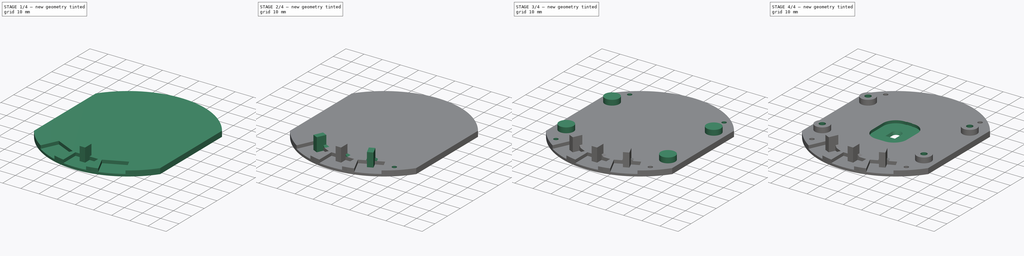
[diagram: build sequence overview — one tinted view per stage of 4, left to right]
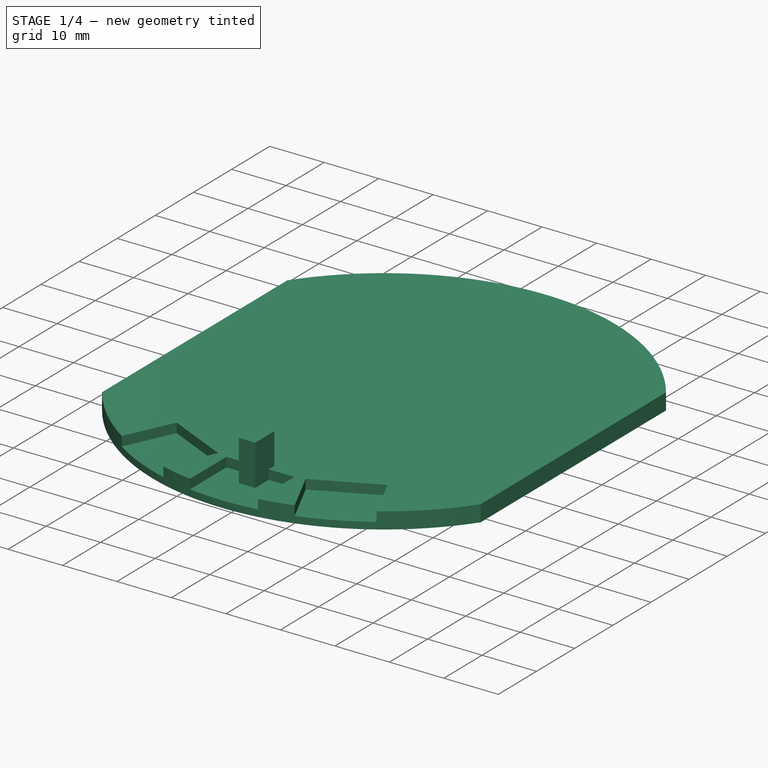
[diagram: stage 1 of 4 — iso view after this stage's code; geometry added in this stage tinted green]
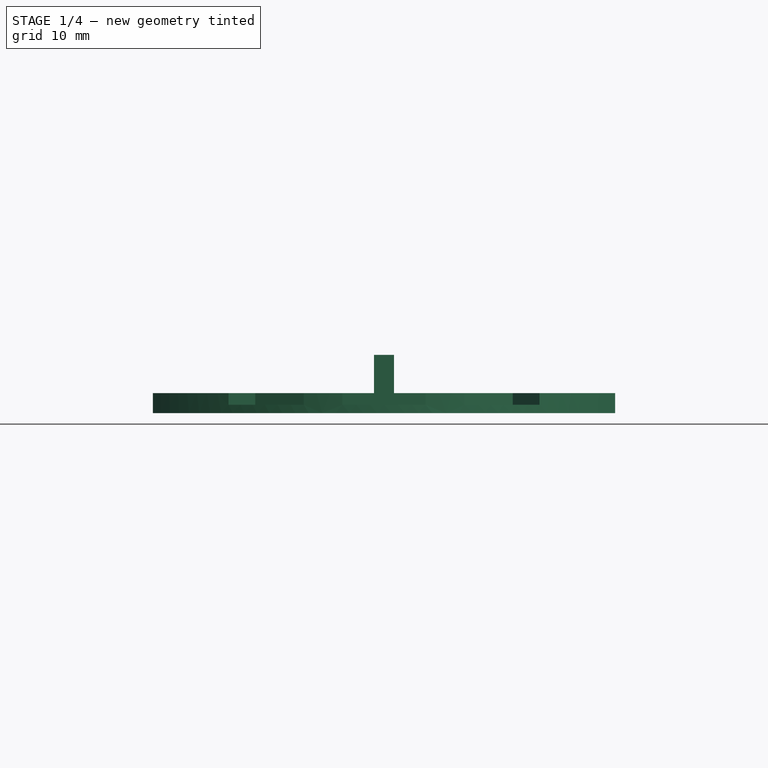
[diagram: stage 1 of 4 — front view after this stage's code; geometry added in this stage tinted green]
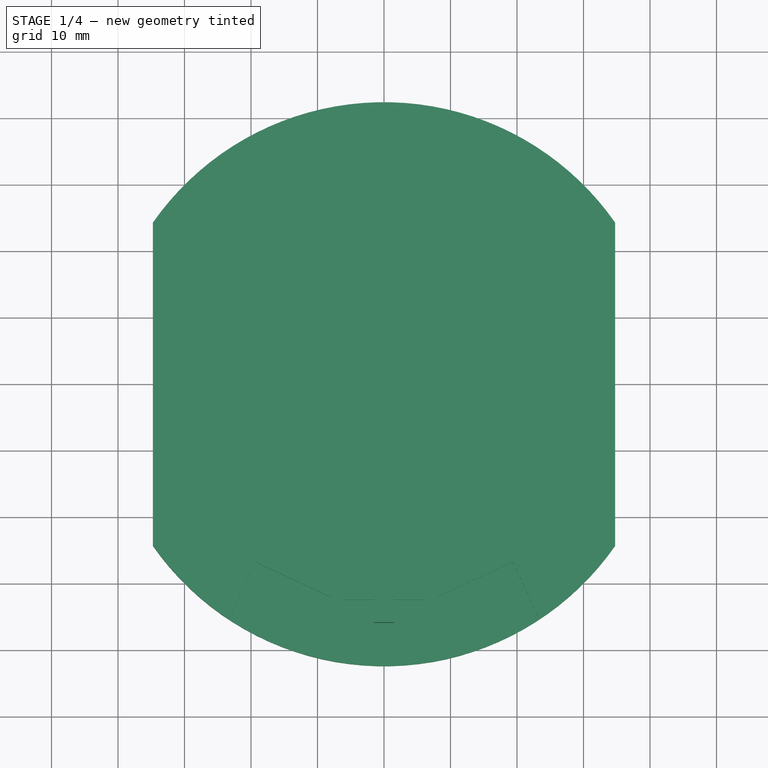
[diagram: stage 1 of 4 — top view after this stage's code; geometry added in this stage tinted green]
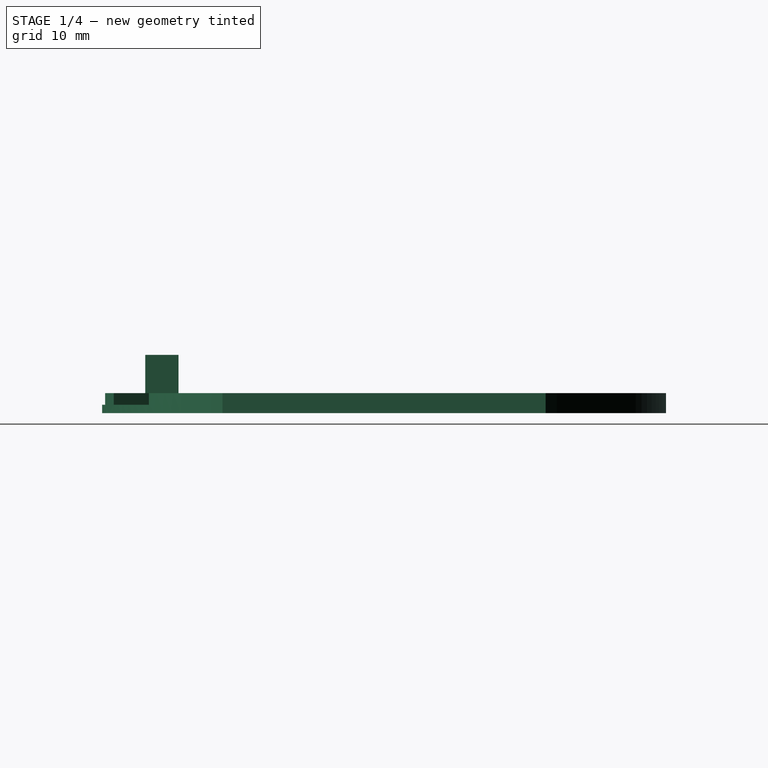
[diagram: stage 1 of 4 — right view after this stage's code; geometry added in this stage tinted green]
FCSTD DOCUMENT  (FreeCAD 0.20R29177 (Git))
Label: depraz_base_DEEPER_BUTTONS
License: All rights reserved
LicenseURL: http://en.wikipedia.org/wiki/All_rights_reserved
objects: Sketcher::SketchObject×7, PartDesign::Mirrored×6, PartDesign::MultiTransform×5, PartDesign::PolarPattern×4, PartDesign::Pad×2, PartDesign::Pocket×2, PartDesign::SubtractiveBox×1, PartDesign::AdditiveBox×1, PartDesign::Chamfer×1, PartDesign::Hole×1, PartDesign::SubtractiveLoft×1, PartDesign::Body×1
note: 41 computed .brp shape members not serialized (recipe doc carries the construction recipe); baked Part::Feature solids carry a one-line shape summary decoded from their .brp

FEATURE [Sketcher::SketchObject] Sketch001
  FullyConstrained = false
  MapMode = 5
  Support = -> [XY_Plane]
  sketch-geometry (4):
    g0: ArcOfCircle CenterX=0 CenterY=0 CenterZ=0 NormalX=0 NormalY=0 NormalZ=1 AngleXU=0 Radius=42.4 StartAngle=3.75172 EndAngle=5.67306
    g1: LineSegment StartX=-34.75 StartY=24.294 StartZ=0 EndX=-34.75 EndY=-24.294 EndZ=0
    g2: LineSegment StartX=34.75 StartY=24.294 StartZ=0 EndX=34.75 EndY=-24.294 EndZ=0
    g3: ArcOfCircle CenterX=0 CenterY=0 CenterZ=0 NormalX=0 NormalY=0 NormalZ=1 AngleXU=0 Radius=42.4 StartAngle=0.610127 EndAngle=2.53147
  constraints (10):
    c: Coincident(g0,g-1)
    c: Radius(g0) = 42.4
    c: Vertical(g1)
    c: Vertical(g2)
    c: Equal(g0,g3)
    c: Coincident(g0,g3)
    c: Coincident(g2,g3)
    c: Coincident(g2,g0)
    c: Coincident(g1,g0)
    c: Coincident(g1,g3)
FEATURE [PartDesign::Pad] Pad
  Direction = (1,1,1)
  Length = 3
  Length2 = 100
  Profile = -> Sketch001
  Type = 0
FEATURE [PartDesign::SubtractiveBox] Box
  AttacherType = Attacher::AttachEngine3D
  AttachmentOffset = pos=(-6.25,-42.4,-1.75) rot=(0,0,1;0rad)
  BaseFeature = -> Pad
  Height = 1.75
  Length = 12.5
  MapMode = 5
  Placement = pos=(-6.25,-42.4,1.25) rot=(0,0,1;0rad)
  Support = -> [Pad]
  Width = 10
FEATURE [PartDesign::PolarPattern] PolarPattern
  Angle = 25
  Axis = -> Z_Axis
  Occurrences = 2
  Placement = pos=(-6.25,-42.4,1.25) rot=(0,0,1;0rad)
FEATURE [PartDesign::PolarPattern] PolarPattern001
  Angle = 25
  Axis = -> Z_Axis
  Occurrences = 2
  Placement = pos=(-6.25,-42.4,1.25) rot=(0,0,1;0rad)
  Reversed = true
FEATURE [PartDesign::MultiTransform] MultiTransform
  BaseFeature = -> Box
  Originals = -> [Box]
  Placement = pos=(-6.25,-42.4,1.25) rot=(0,0,1;0rad)
  Transformations = -> [PolarPattern,PolarPattern001]
FEATURE [PartDesign::AdditiveBox] Box001
  AttacherType = Attacher::AttachEngine3D
  AttachmentOffset = pos=(4.75,6.5,0) rot=(0,0,1;0rad)
  BaseFeature = -> MultiTransform
  Height = 7.5
  Length = 3
  MapMode = 5
  Placement = pos=(-1.5,-35.9,1.25) rot=(0,0,1;0rad)
  Support = -> [MultiTransform]
  Width = 5
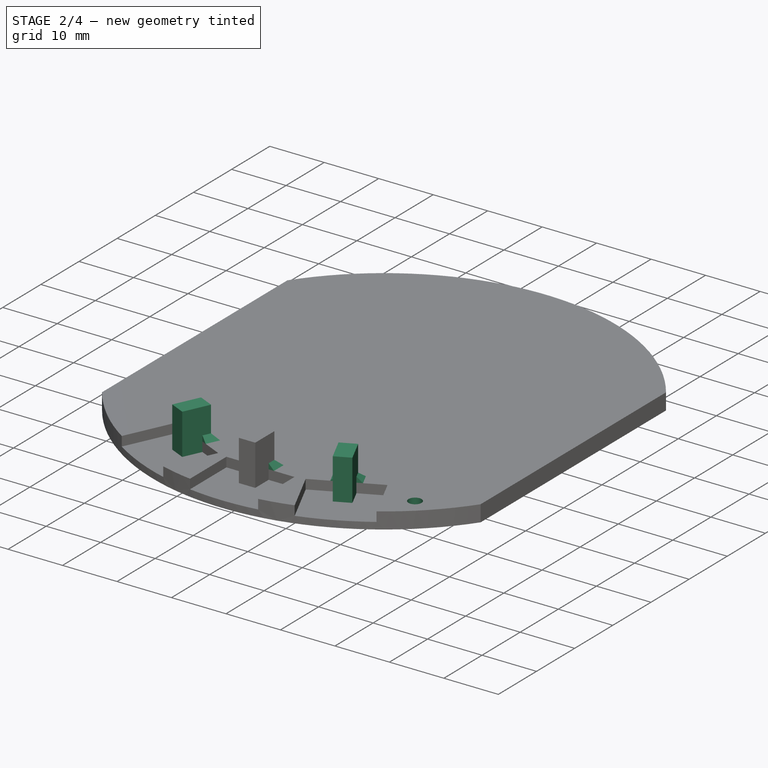
[diagram: stage 2 of 4 — iso view after this stage's code; geometry added in this stage tinted green]
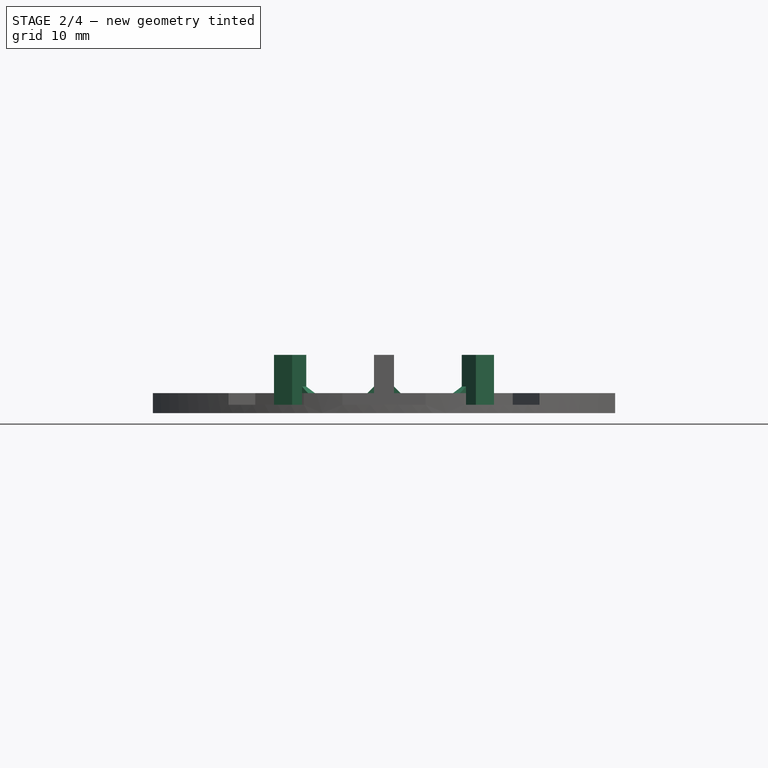
[diagram: stage 2 of 4 — front view after this stage's code; geometry added in this stage tinted green]
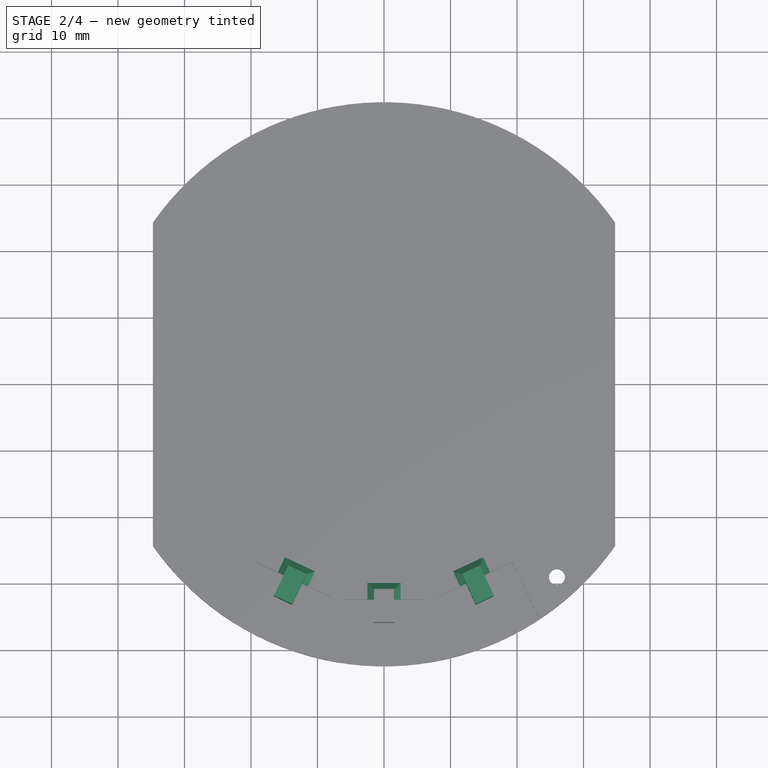
[diagram: stage 2 of 4 — top view after this stage's code; geometry added in this stage tinted green]
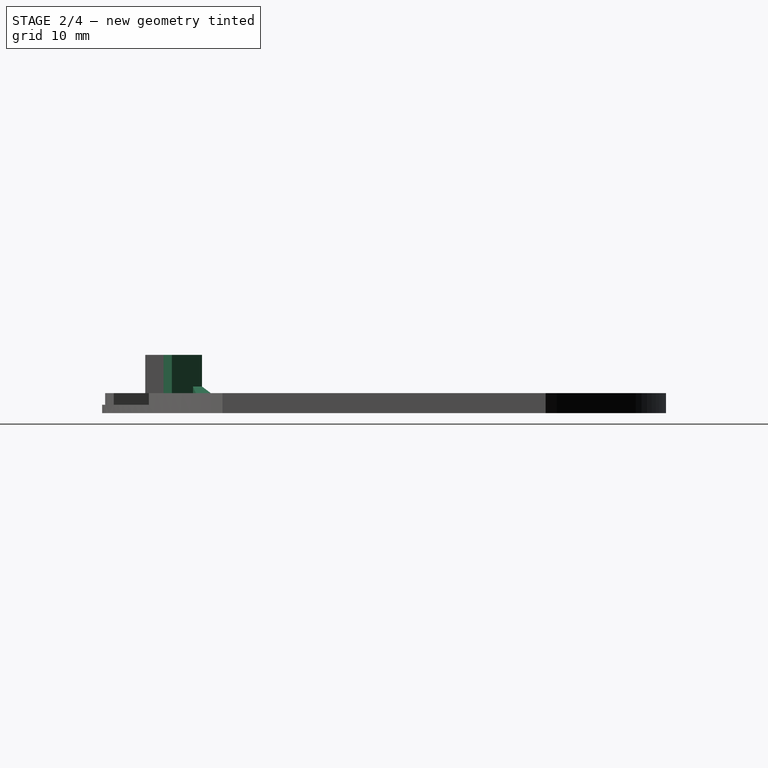
[diagram: stage 2 of 4 — right view after this stage's code; geometry added in this stage tinted green]
FEATURE [PartDesign::Chamfer] Chamfer
  Angle = 45
  Base = -> Box001 [Edge30,Edge31,Edge32]
  BaseFeature = -> Box001
  ChamferType = 0
  FlipDirection = false
  Placement = pos=(-1.5,-35.9,1.25) rot=(0,0,1;0rad)
  Size = 1
  Size2 = 1
  SupportTransform = false
  UseAllEdges = false
FEATURE [PartDesign::PolarPattern] PolarPattern002
  Angle = 25
  Axis = -> Z_Axis
  Occurrences = 2
  Placement = pos=(-1.5,-35.9,1.25) rot=(0,0,1;0rad)
FEATURE [PartDesign::PolarPattern] PolarPattern003
  Angle = 25
  Axis = -> Z_Axis
  Occurrences = 2
  Placement = pos=(-1.5,-35.9,1.25) rot=(0,0,1;0rad)
  Reversed = true
FEATURE [PartDesign::MultiTransform] MultiTransform001
  BaseFeature = -> Chamfer
  Originals = -> [Box001,Chamfer]
  Placement = pos=(-1.5,-35.9,1.25) rot=(0,0,1;0rad)
  Transformations = -> [PolarPattern002,PolarPattern003]
FEATURE [Sketcher::SketchObject] Sketch
  FullyConstrained = true
  MapMode = 5
  Support = -> [XY_Plane]
  sketch-geometry (1):
    g0: Circle CenterX=26 CenterY=-29 CenterZ=0 NormalX=0 NormalY=0 NormalZ=1 AngleXU=0 Radius=2
  constraints (3):
    c: Radius(g0) = 2
    c: DistanceX(g-1,g0) = 26
    c: DistanceY(g0,g-1) = 29
FEATURE [PartDesign::Hole] Hole
  BaseFeature = -> MultiTransform001
  CustomThreadClearance = 0
  Depth = 4
  DepthType = 1
  Diameter = 2.4
  DrillForDepth = false
  DrillPoint = 1
  DrillPointAngle = 118
  HoleCutCountersinkAngle = 90
  HoleCutCustomValues = false
  HoleCutDepth = 1.2
  HoleCutDiameter = 4
  HoleCutType = 2
  ModelThread = false
  Placement = pos=(-1.5,-35.9,1.25) rot=(0,0,1;0rad)
  Profile = -> Sketch
  Reversed = true
  Tapered = false
  TaperedAngle = 90
  ThreadClass = 0
  ThreadDepth = 4
  ThreadDepthType = 0
  ThreadDirection = 0
  ThreadFit = 0
  ThreadSize = 6
  ThreadType = 1
  Threaded = false
  UseCustomThreadClearance = false
  expr: HoleCutDiameter = 4
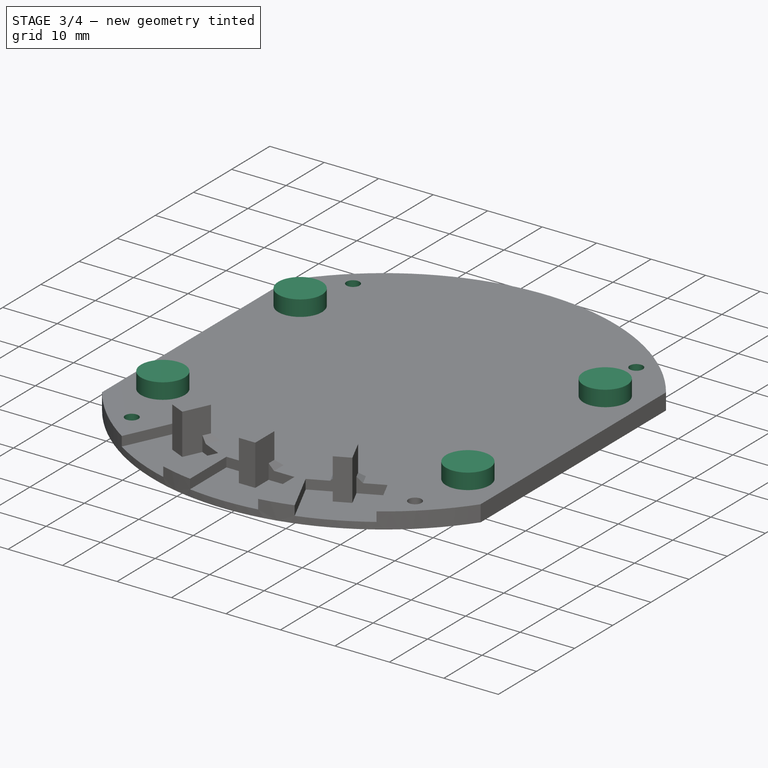
[diagram: stage 3 of 4 — iso view after this stage's code; geometry added in this stage tinted green]
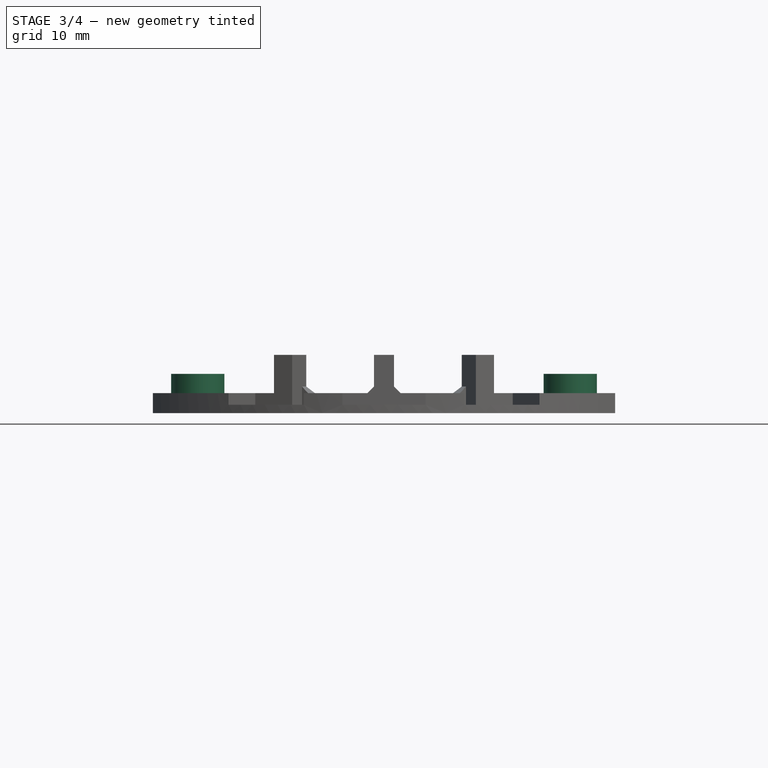
[diagram: stage 3 of 4 — front view after this stage's code; geometry added in this stage tinted green]
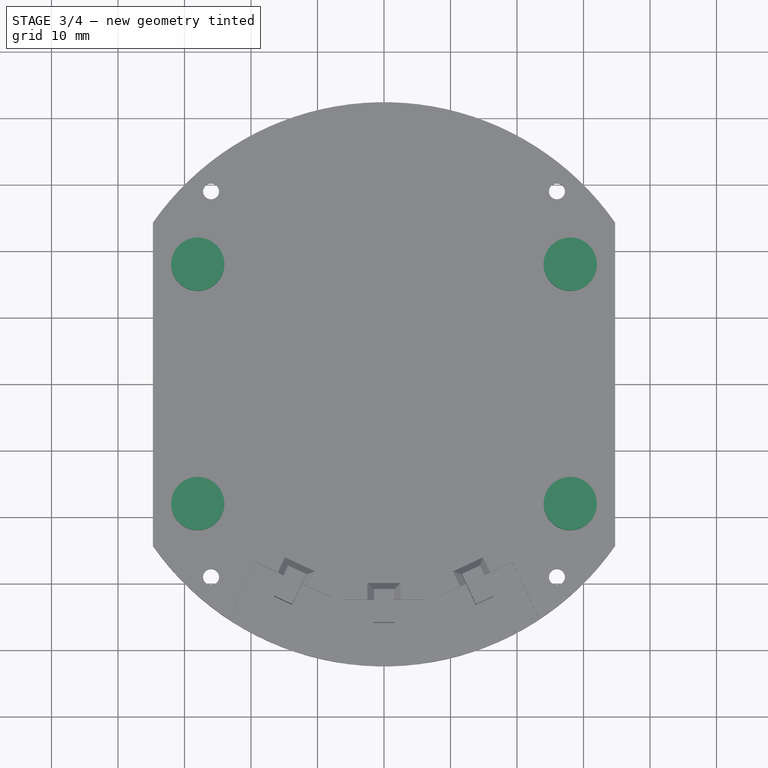
[diagram: stage 3 of 4 — top view after this stage's code; geometry added in this stage tinted green]
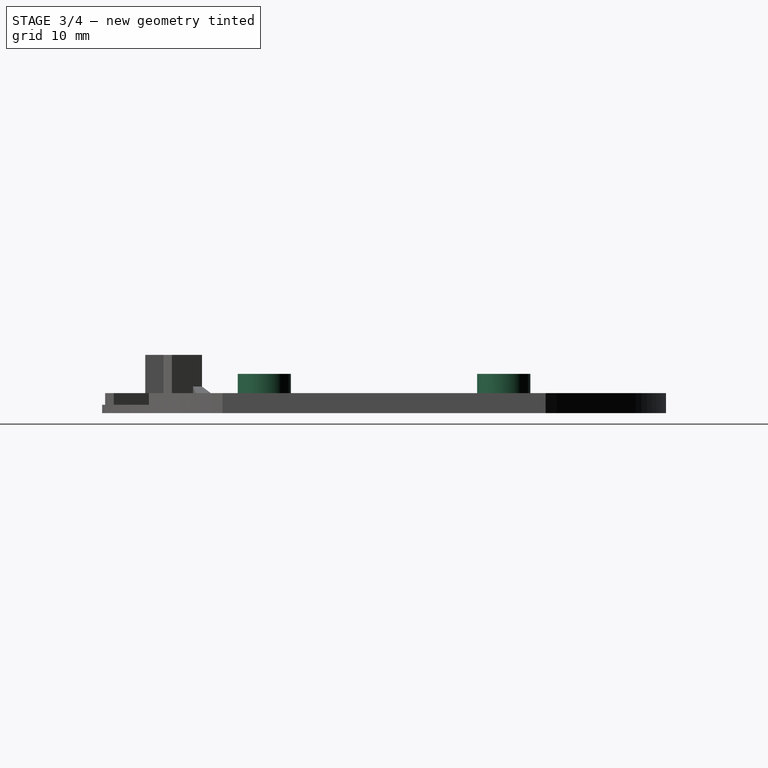
[diagram: stage 3 of 4 — right view after this stage's code; geometry added in this stage tinted green]
FEATURE [PartDesign::Mirrored] Mirrored
  MirrorPlane = -> Sketch [V_Axis]
  Placement = pos=(-1.5,-35.9,1.25) rot=(0,0,1;0rad)
FEATURE [PartDesign::Mirrored] Mirrored001
  MirrorPlane = -> Sketch [H_Axis]
  Placement = pos=(-1.5,-35.9,1.25) rot=(0,0,1;0rad)
FEATURE [PartDesign::MultiTransform] MultiTransform002
  BaseFeature = -> Hole
  Originals = -> [Hole]
  Placement = pos=(-1.5,-35.9,1.25) rot=(0,0,1;0rad)
  Transformations = -> [Mirrored,Mirrored001]
FEATURE [Sketcher::SketchObject] Sketch002
  FullyConstrained = true
  MapMode = 5
  Support = -> [XY_Plane]
  sketch-geometry (1):
    g0: Circle CenterX=-28 CenterY=-18 CenterZ=0 NormalX=0 NormalY=0 NormalZ=1 AngleXU=0 Radius=4
  constraints (3):
    c: Radius(g0) = 4
    c: DistanceX(g0,g-1) = 28
    c: DistanceY(g0,g-1) = 18
FEATURE [PartDesign::Pad] Pad001
  BaseFeature = -> MultiTransform002
  Direction = (0,0,1)
  Length = 5.9
  Length2 = 100
  Placement = pos=(-1.5,-35.9,1.25) rot=(0,0,1;0rad)
  Profile = -> Sketch002
  Type = 0
FEATURE [PartDesign::Mirrored] Mirrored002
  MirrorPlane = -> Sketch002 [V_Axis]
  Placement = pos=(-1.5,-35.9,1.25) rot=(0,0,1;0rad)
FEATURE [PartDesign::Mirrored] Mirrored003
  MirrorPlane = -> Sketch002 [H_Axis]
  Placement = pos=(-1.5,-35.9,1.25) rot=(0,0,1;0rad)
FEATURE [PartDesign::MultiTransform] MultiTransform003
  BaseFeature = -> Pad001
  Originals = -> [Pad001]
  Placement = pos=(-1.5,-35.9,1.25) rot=(0,0,1;0rad)
  Transformations = -> [Mirrored002,Mirrored003]
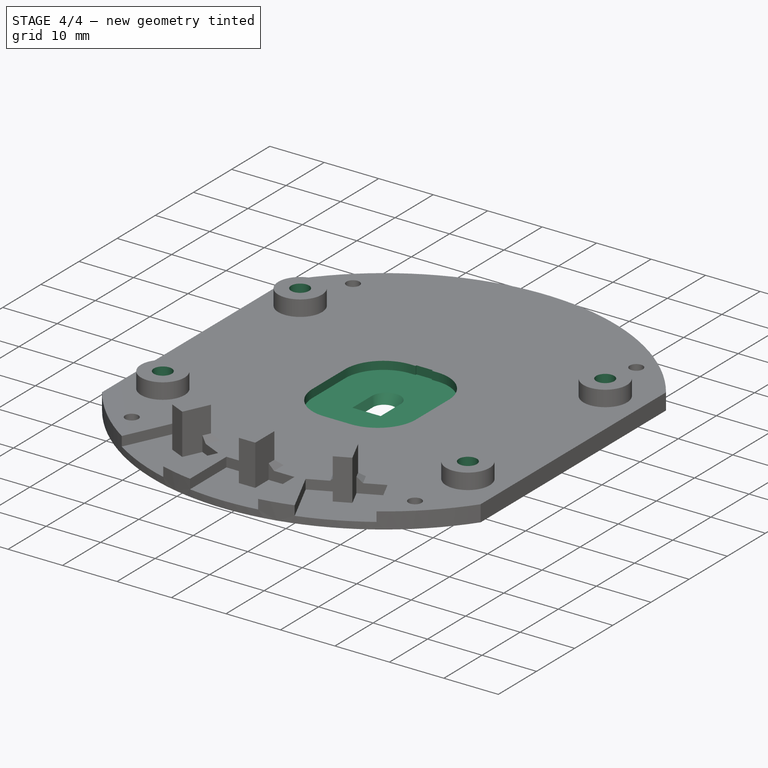
[diagram: stage 4 of 4 — iso view after this stage's code; geometry added in this stage tinted green]
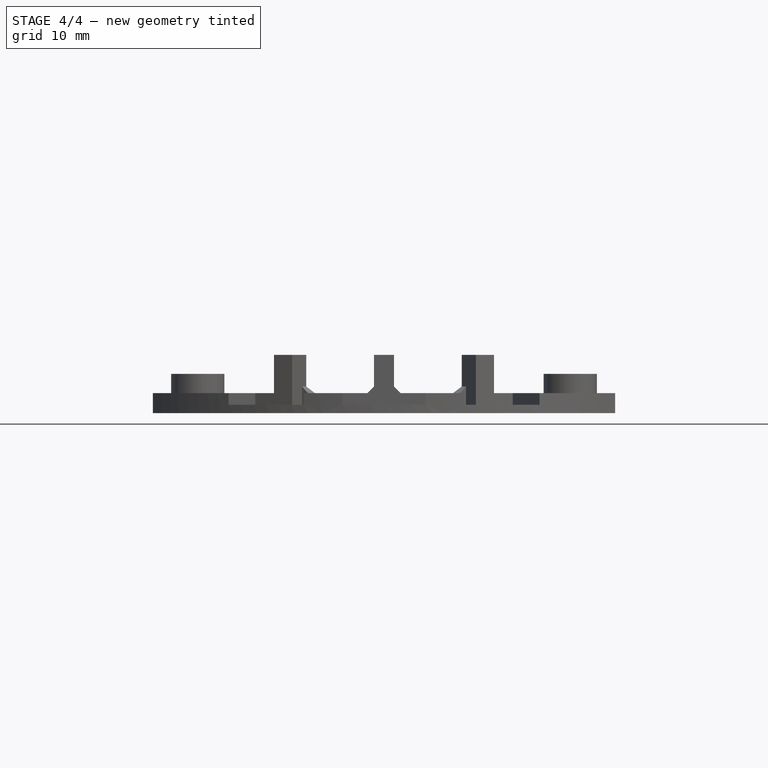
[diagram: stage 4 of 4 — front view after this stage's code; geometry added in this stage tinted green]
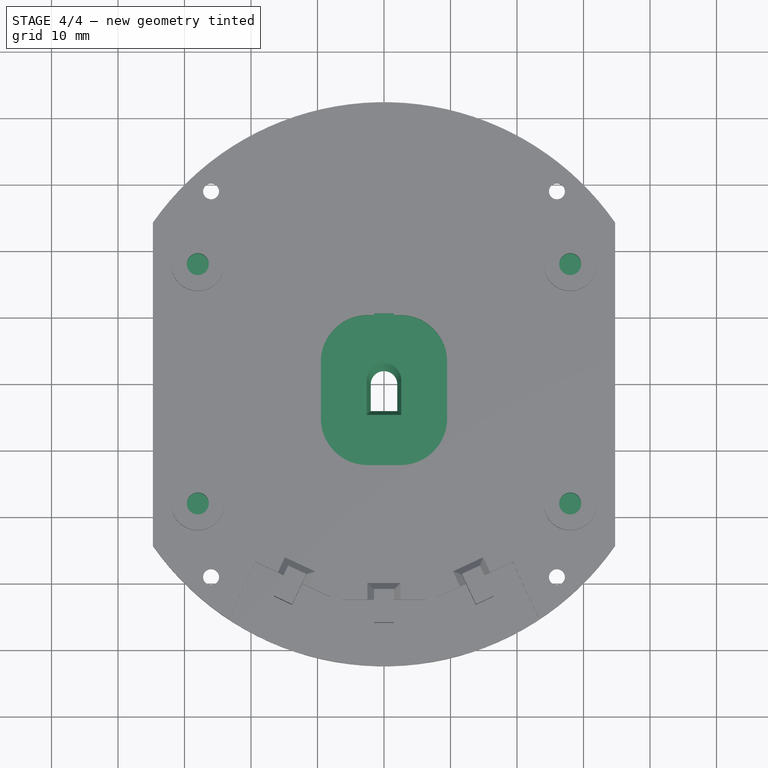
[diagram: stage 4 of 4 — top view after this stage's code; geometry added in this stage tinted green]
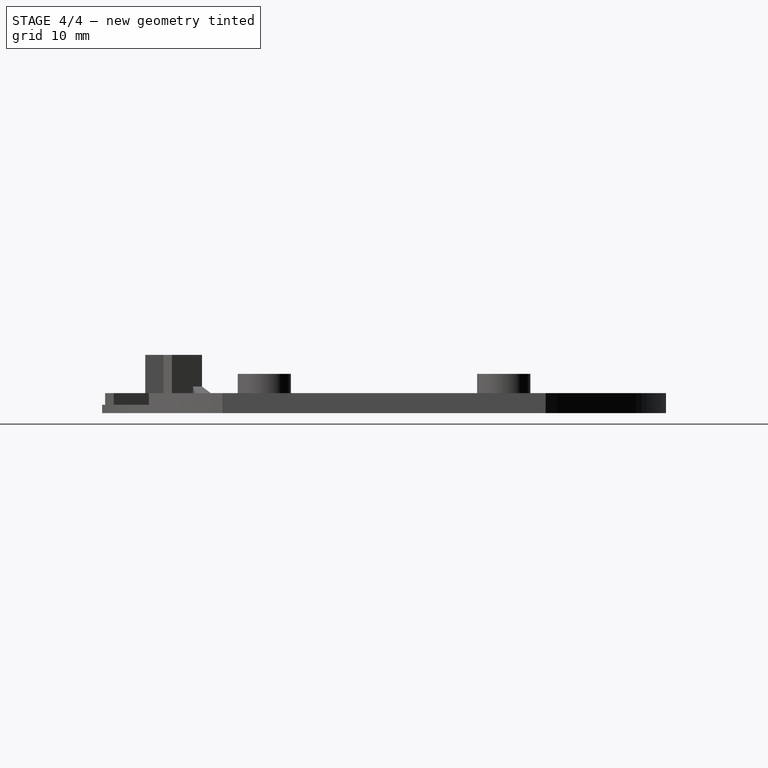
[diagram: stage 4 of 4 — right view after this stage's code; geometry added in this stage tinted green]
FEATURE [Sketcher::SketchObject] Sketch003
  FullyConstrained = false
  MapMode = 5
  Placement = pos=(0,0,3) rot=(0,0,1;0rad)
  Support = -> [Pad]
  sketch-geometry (12):
    g0: ArcOfCircle CenterX=2.45 CenterY=3.34581 CenterZ=0 NormalX=0 NormalY=0 NormalZ=1 AngleXU=0 Radius=7.05 StartAngle=0 EndAngle=1.5708
    g1: ArcOfCircle CenterX=-2.45 CenterY=3.34581 CenterZ=0 NormalX=0 NormalY=0 NormalZ=1 AngleXU=0 Radius=7.05 StartAngle=1.5708 EndAngle=3.14159
    g2: ArcOfCircle CenterX=-2.45 CenterY=-5.12633 CenterZ=0 NormalX=0 NormalY=0 NormalZ=1 AngleXU=0 Radius=7.05 StartAngle=3.14159 EndAngle=4.71239
    g3: ArcOfCircle CenterX=2.45 CenterY=-5.12633 CenterZ=0 NormalX=0 NormalY=0 NormalZ=1 AngleXU=0 Radius=7.05 StartAngle=4.71239 EndAngle=6.28319
    g4: LineSegment StartX=-1.5 StartY=10.6458 StartZ=0 EndX=1.5 EndY=10.6458 EndZ=0
    g5: LineSegment StartX=-1.5 StartY=10.6458 StartZ=0 EndX=-1.5 EndY=10.3958 EndZ=0
    g6: LineSegment StartX=1.5 StartY=10.6458 StartZ=0 EndX=1.5 EndY=10.3958 EndZ=0
    g7: LineSegment StartX=-2.45 StartY=-12.1763 StartZ=0 EndX=2.45 EndY=-12.1763 EndZ=0
    g8: LineSegment StartX=-9.5 StartY=-5.12633 StartZ=0 EndX=-9.5 EndY=3.34581 EndZ=0
    g9: LineSegment StartX=-1.5 StartY=10.3958 StartZ=0 EndX=-2.45 EndY=10.3958 EndZ=0
    g10: LineSegment StartX=1.5 StartY=10.3958 StartZ=0 EndX=2.45 EndY=10.3958 EndZ=0
    g11: LineSegment StartX=9.5 StartY=3.34581 StartZ=0 EndX=9.5 EndY=-5.12633 EndZ=0
  constraints (38):
    c: Radius(g0) = 7.05
    c: Radius(g1) = 7.05
    c: Radius(g2) = 7.05
    c: Radius(g3) = 7.05
    c: Horizontal(g4)
    c: Distance(g4) = 3
    c: Coincident(g5,g4)
    c: Vertical(g5)
    c: Distance(g5) = 0.25
    c: Coincident(g6,g4)
    c: Vertical(g6)
    c: Distance(g6) = 0.25
    c: DistanceX(g4,g-1) = 1.5
    c: Horizontal(g7)
    c: Distance(g7) = 4.9
    c: Coincident(g3,g7)
    c: Coincident(g2,g7)
    c: DistanceX(g2,g-1) = 2.45
    c: DistanceX(g1,g-1) = 9.5
    c: DistanceX(g-1,g0) = 9.5
    c: Coincident(g8,g2)
    c: Coincident(g8,g1)
    c: Vertical(g8)
    c: Coincident(g9,g5)
    c: Horizontal(g9)
    c: Distance(g9) = 0.95
    c: Coincident(g1,g9)
    c: Angle(g1) = 1.5708
    c: Angle(g2) = 1.5708
    c: Angle(g3) = 1.5708
    c: Angle(g0) = 1.5708
    c: Coincident(g10,g6)
    c: Horizontal(g10)
    c: Distance(g10) = 0.95
    c: Coincident(g10,g0)
    c: Coincident(g11,g0)
    c: Coincident(g11,g3)
    c: Vertical(g11)
FEATURE [PartDesign::Pocket] Pocket
  BaseFeature = -> MultiTransform003
  Direction = (0,0,-1)
  Length = 1.5
  Length2 = 100
  Placement = pos=(-1.5,-35.9,1.25) rot=(0,0,1;0rad)
  Profile = -> Sketch003
  Type = 0
FEATURE [Sketcher::SketchObject] Sketch004
  FullyConstrained = false
  MapMode = 5
  Support = -> [XY_Plane]
  sketch-geometry (4):
    g0: LineSegment StartX=2 StartY=0 StartZ=0 EndX=2 EndY=-4 EndZ=0
    g1: LineSegment StartX=2 StartY=-4 StartZ=0 EndX=-2 EndY=-4 EndZ=0
    g2: LineSegment StartX=-2 StartY=-4 StartZ=0 EndX=-2 EndY=0 EndZ=0
    g3: ArcOfCircle CenterX=0 CenterY=0 CenterZ=0 NormalX=0 NormalY=0 NormalZ=1 AngleXU=0 Radius=2 StartAngle=0 EndAngle=3.14159
  constraints (9):
    c: Coincident(g0,g1)
    c: Coincident(g1,g2)
    c: Horizontal(g1)
    c: Vertical(g0)
    c: Vertical(g2)
    c: Distance(g0) = 4
    c: DistanceX(g2,g-1) = 2
    c: DistanceY(g2,g-1) = 0
    c: Coincident(g3,g-1)
FEATURE [Sketcher::SketchObject] Sketch005
  AttachmentOffset = pos=(0,0,1.5) rot=(0,0,1;0rad)
  FullyConstrained = true
  MapMode = 5
  Placement = pos=(0,0,1.5) rot=(0,0,1;0rad)
  Support = -> [XY_Plane]
  sketch-geometry (4):
    g0: LineSegment StartX=2.6 StartY=0.6 StartZ=0 EndX=2.6 EndY=-4.6 EndZ=0
    g1: LineSegment StartX=2.6 StartY=-4.6 StartZ=0 EndX=-2.6 EndY=-4.6 EndZ=0
    g2: LineSegment StartX=-2.6 StartY=-4.6 StartZ=0 EndX=-2.6 EndY=0.6 EndZ=0
    g3: ArcOfCircle CenterX=-1e-16 CenterY=0.6 CenterZ=0 NormalX=0 NormalY=0 NormalZ=1 AngleXU=0 Radius=2.6 StartAngle=1e-16 EndAngle=3.14159
  constraints (13):
    c: Coincident(g0,g1)
    c: Coincident(g1,g2)
    c: Horizontal(g1)
    c: Vertical(g0)
    c: Vertical(g2)
    c: Distance(g1) = 5.2
    c: DistanceX(g-1,g0) = 2.6
    c: DistanceY(g1,g-1) = 4.6
    c: Distance(g2) = 5.2
    c: Distance(g0) = 5.2
    c: Coincident(g3,g2)
    c: Coincident(g3,g0)
    c: Angle(g3) = 3.14159
FEATURE [PartDesign::SubtractiveLoft] SubtractiveLoft
  BaseFeature = -> Pocket
  Closed = false
  Placement = pos=(-1.5,-35.9,1.25) rot=(0,0,1;0rad)
  Profile = -> Sketch004
  Ruled = false
  Sections = -> [Sketch005]
FEATURE [Sketcher::SketchObject] Sketch006
  AttachmentOffset = pos=(0,0,6) rot=(0,0,1;0rad)
  FullyConstrained = true
  MapMode = 5
  Placement = pos=(0,0,6) rot=(0,0,1;0rad)
  Support = -> [XY_Plane]
  sketch-geometry (1):
    g0: Circle CenterX=-28 CenterY=-18 CenterZ=0 NormalX=0 NormalY=0 NormalZ=1 AngleXU=0 Radius=1.65
  constraints (3):
    c: DistanceX(g0,g-1) = 28
    c: DistanceY(g0,g-1) = 18
    c: Diameter(g0) = 3.3
FEATURE [PartDesign::Pocket] Pocket001
  BaseFeature = -> SubtractiveLoft
  Direction = (0,0,-1)
  Length = 4.5
  Length2 = 100
  Placement = pos=(-1.5,-35.9,1.25) rot=(0,0,1;0rad)
  Profile = -> Sketch006
  Type = 0
FEATURE [PartDesign::Mirrored] Mirrored004
  MirrorPlane = -> Sketch006 [V_Axis]
  Placement = pos=(-1.5,-35.9,1.25) rot=(0,0,1;0rad)
FEATURE [PartDesign::Mirrored] Mirrored005
  MirrorPlane = -> Sketch006 [H_Axis]
  Placement = pos=(-1.5,-35.9,1.25) rot=(0,0,1;0rad)
FEATURE [PartDesign::MultiTransform] MultiTransform004
  BaseFeature = -> Pocket001
  Originals = -> [Pocket001]
  Placement = pos=(-1.5,-35.9,1.25) rot=(0,0,1;0rad)
  Transformations = -> [Mirrored004,Mirrored005]
FEATURE [PartDesign::Body] Body
  Group = -> [Sketch001,Pad,Box,MultiTransform,PolarPattern,PolarPattern001,Box001,Chamfer,MultiTransform001,PolarPattern002,PolarPattern003,Sketch,Hole,MultiTransform002,Mirrored,Mirrored001,Sketch002,Pad001,MultiTransform003,Mirrored002,Mirrored003,Sketch003,Pocket,Sketch004,Sketch005,SubtractiveLoft,Sketch006,Pocket001,MultiTransform004,Mirrored004,Mirrored005]
  Origin = -> Origin
  Tip = -> MultiTransform004
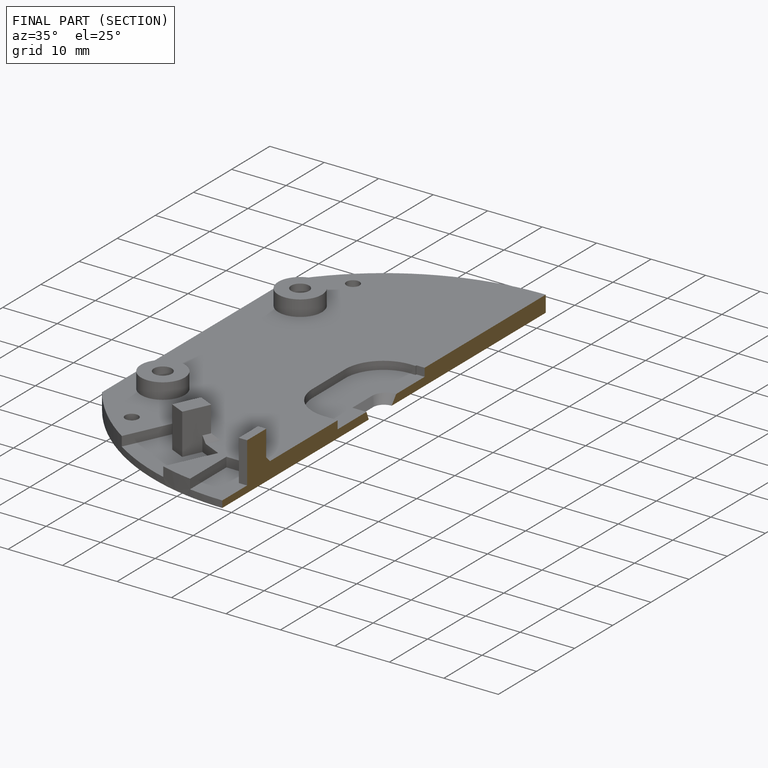
[diagram: finished part — half-section view (interior)]
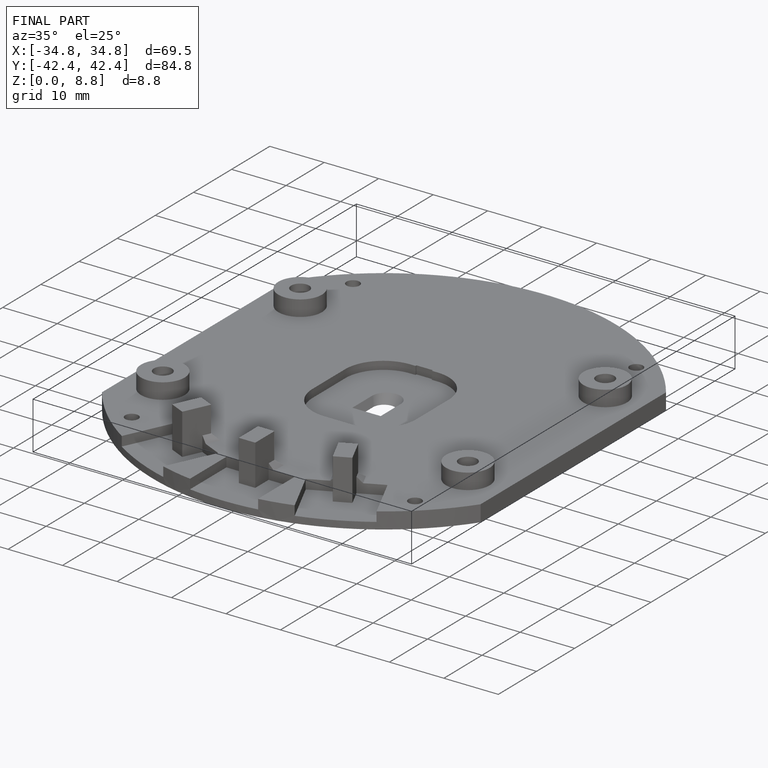
[diagram: finished part — iso view with bounding-box wireframe]
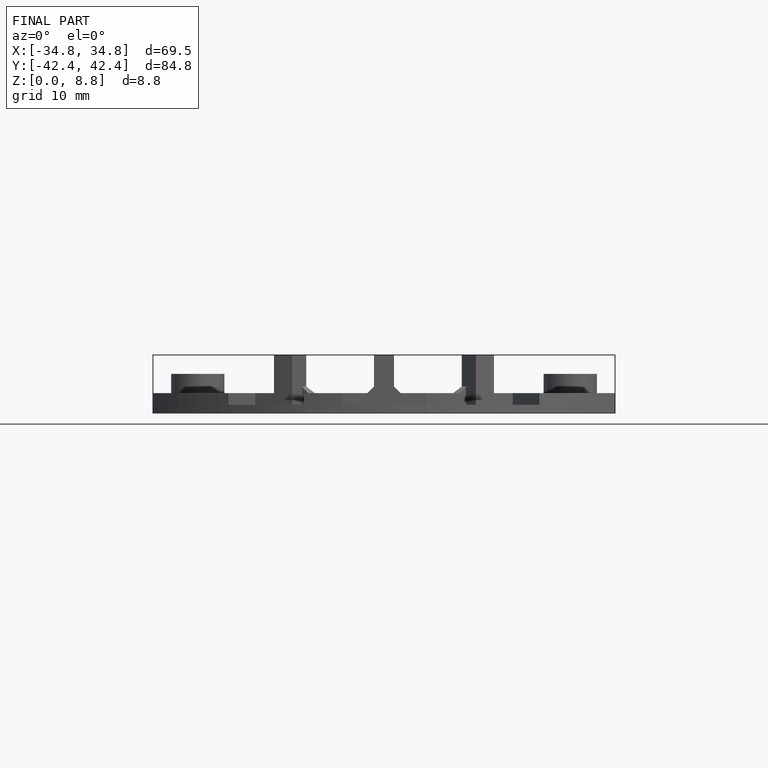
[diagram: finished part — front view with bounding-box wireframe]
